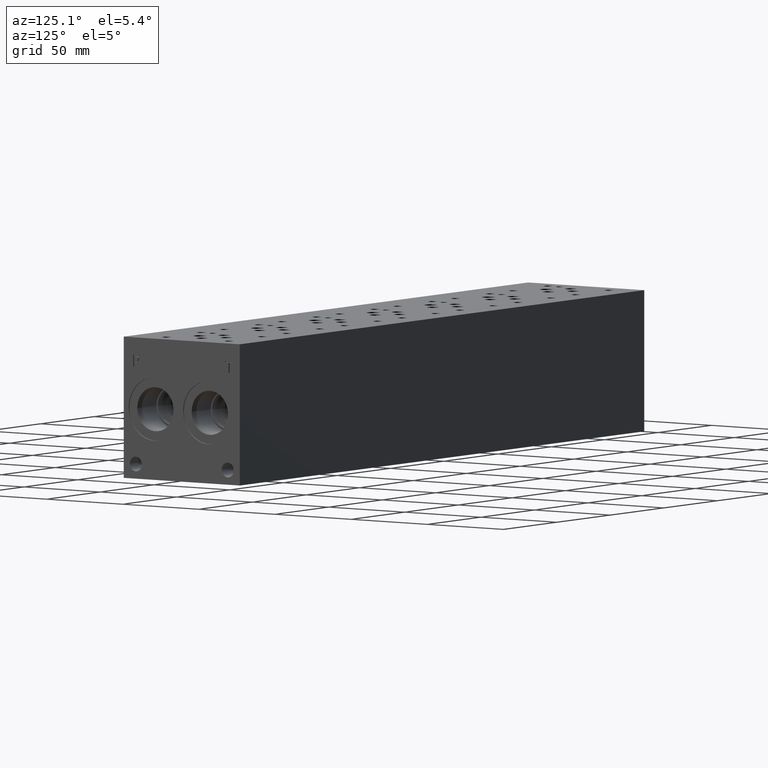
[diagram: clean part render]
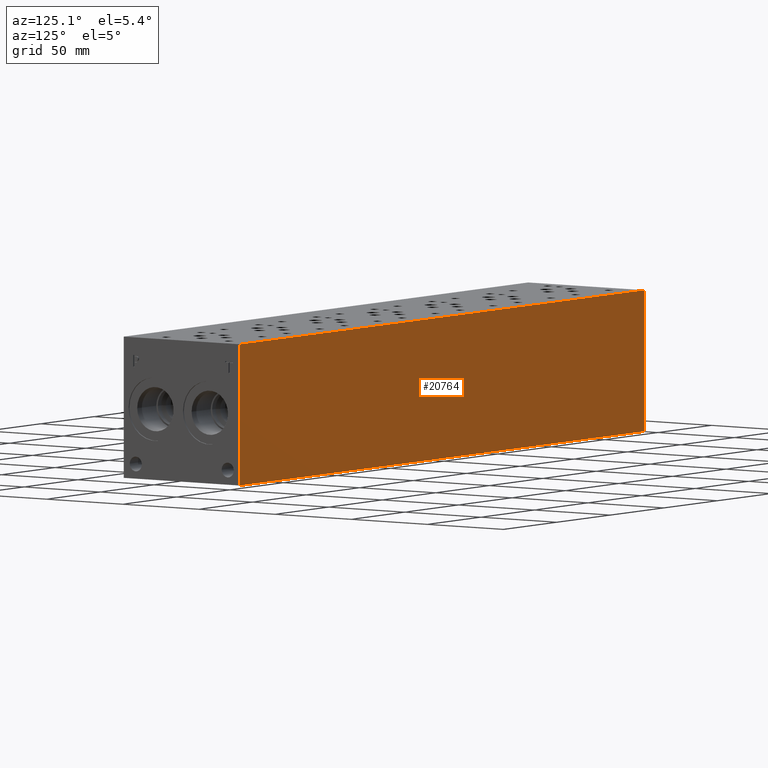
[diagram: same view with one face highlighted and labeled with its STEP entity id]
A machine part, auxiliary view. The second image highlights one B-rep face of the part: STEP entity #20764.
In plain terms, the highlighted planar face has unit normal (0, 1, 0).
Its self-contained STEP definition (entity closure, byte-faithful):
#3085=FACE_OUTER_BOUND('',#4336,.T.);
#4336=EDGE_LOOP('',(#18372,#18373,#18374,#18375));
#5678=LINE('',#33704,#7382);
#5738=LINE('',#33977,#7442);
#6106=LINE('',#36253,#7810);
#6107=LINE('',#36254,#7811);
#7382=VECTOR('',#24534,10.);
#7442=VECTOR('',#24648,10.);
#7810=VECTOR('',#27246,10.);
#7811=VECTOR('',#27247,10.);
#8988=VERTEX_POINT('',#33701);
#8989=VERTEX_POINT('',#33703);
#9046=VERTEX_POINT('',#33973);
#9047=VERTEX_POINT('',#33975);
#11589=EDGE_CURVE('',#8988,#8989,#5678,.T.);
#11673=EDGE_CURVE('',#9046,#9047,#5738,.T.);
#12732=EDGE_CURVE('',#8988,#9046,#6106,.T.);
#12733=EDGE_CURVE('',#8989,#9047,#6107,.T.);
#18372=ORIENTED_EDGE('',*,*,#12732,.T.);
#18373=ORIENTED_EDGE('',*,*,#11673,.T.);
#18374=ORIENTED_EDGE('',*,*,#12733,.F.);
#18375=ORIENTED_EDGE('',*,*,#11589,.F.);
#19032=PLANE('',#22367);
#20764=ADVANCED_FACE('',(#3085),#19032,.T.);
#22367=AXIS2_PLACEMENT_3D('',#36252,#27244,#27245);
#24534=DIRECTION('',(0.,0.,1.));
#24648=DIRECTION('',(0.,0.,1.));
#27244=DIRECTION('center_axis',(0.,1.,0.));
#27245=DIRECTION('ref_axis',(-1.,0.,0.));
#27246=DIRECTION('',(-1.,0.,0.));
#27247=DIRECTION('',(-1.,0.,0.));
#33701=CARTESIAN_POINT('',(377.825,76.2,0.));
#33703=CARTESIAN_POINT('',(377.825,76.2,76.2));
#33704=CARTESIAN_POINT('',(377.825,76.2,0.));
#33973=CARTESIAN_POINT('',(0.,76.2,0.));
#33975=CARTESIAN_POINT('',(0.,76.2,76.2));
#33977=CARTESIAN_POINT('',(0.,76.2,0.));
#36252=CARTESIAN_POINT('Origin',(377.825,76.2,0.));
#36253=CARTESIAN_POINT('',(377.825,76.2,0.));
#36254=CARTESIAN_POINT('',(377.825,76.2,76.2));